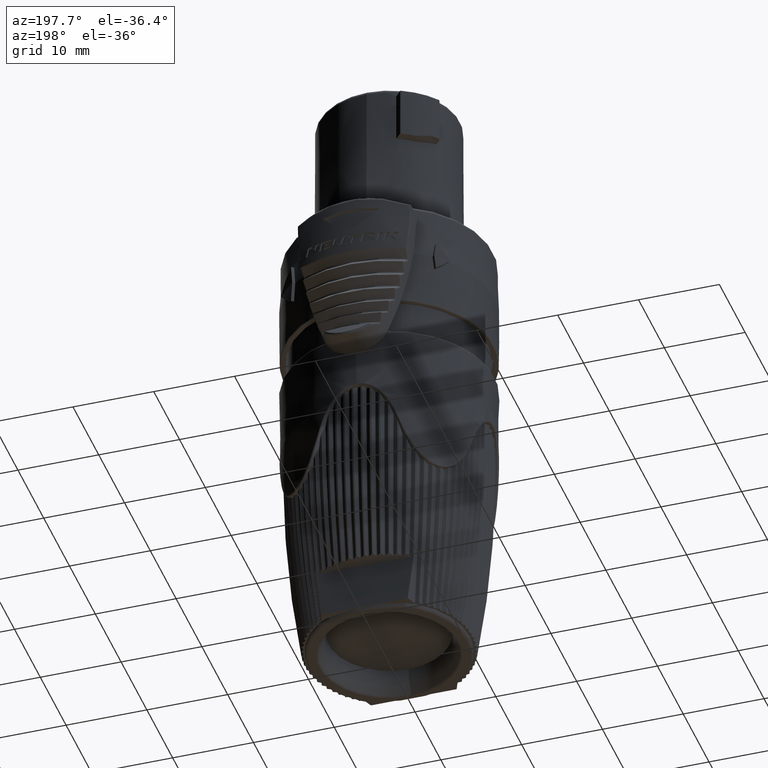
[diagram: clean part render]
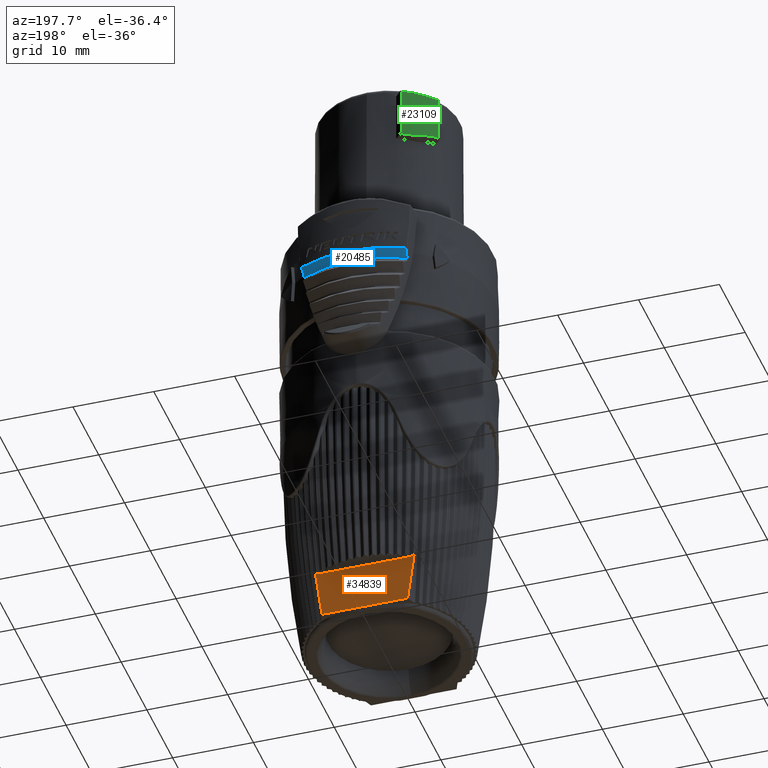
[diagram: same view with three faces highlighted in distinct colors, each labeled with its STEP entity id]
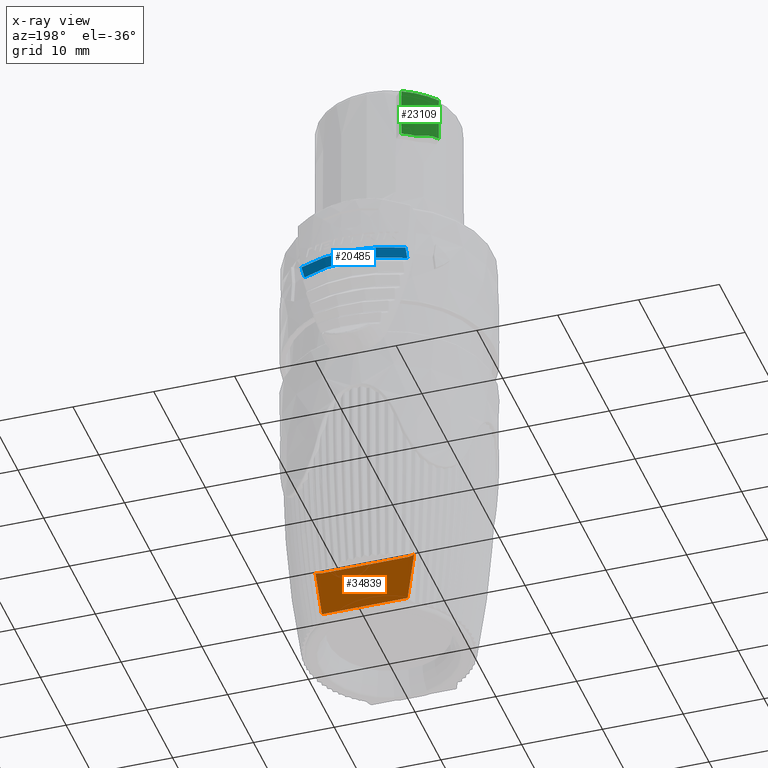
[diagram: x-ray of the same camera — body ghosted, the three highlighted faces saturated]
A machine part, auxiliary view with three faces highlighted in distinct colors.
The next image is the same camera in x-ray (body ghosted, the three faces saturated) — at least one of them is partly hidden behind the body in this view.
Their STEP definitions:

[orange] entity #34839 — the highlighted planar face has unit normal (0, -1, 0).
#8904=DIRECTION('',(-1.E0,0.E0,0.E0));
#8905=VECTOR('',#8904,1.060088867699E1);
#8906=CARTESIAN_POINT('',(5.300444338495E0,9.5E0,-4.25E1));
#8907=LINE('',#8906,#8905);
#10224=CARTESIAN_POINT('',(5.464060213175E0,9.5E0,-3.65E1));
#10225=CARTESIAN_POINT('',(5.478366470474E0,9.5E0,-3.649624897903E1));
#10226=CARTESIAN_POINT('',(5.507201981707E0,9.498439453989E0,
-3.648947753605E1));
#10227=CARTESIAN_POINT('',(5.535265584073E0,9.503121092022E0,
-3.647961945164E1));
#10228=CARTESIAN_POINT('',(5.549623830297E0,9.503121092022E0,
-3.647580898306E1));
#10235=CARTESIAN_POINT('',(5.549623830297E0,9.503121092022E0,
-3.647580898306E1));
#10530=CARTESIAN_POINT('',(-5.549624179735E0,9.503118747782E0,
-3.647580995522E1));
#10537=CARTESIAN_POINT('',(-5.464060213175E0,9.5E0,-3.65E1));
#10538=CARTESIAN_POINT('',(-5.478366470474E0,9.5E0,-3.649624897903E1));
#10539=CARTESIAN_POINT('',(-5.507201806931E0,9.498440626109E0,
-3.648947704975E1));
#10540=CARTESIAN_POINT('',(-5.535265933626E0,9.503118747782E0,
-3.647962042423E1));
#10541=CARTESIAN_POINT('',(-5.549624179735E0,9.503118747782E0,
-3.647580995522E1));
#10560=CARTESIAN_POINT('',(5.549623830297E0,9.503121092022E0,
-3.647580898306E1));
#10561=CARTESIAN_POINT('',(5.593544765742E0,9.503121092022E0,
-3.646416966148E1));
#10562=CARTESIAN_POINT('',(5.682160892628E0,9.498550471150E0,
-3.644281839329E1));
#10563=CARTESIAN_POINT('',(5.814569124323E0,9.500391712944E0,
-3.640581715419E1));
#10564=CARTESIAN_POINT('',(5.947940856207E0,9.499882677076E0,
-3.636916105181E1));
#10565=CARTESIAN_POINT('',(6.037225864147E0,9.500012611526E0,
-3.634397743438E1));
#10566=CARTESIAN_POINT('',(6.082003477146E0,9.500012611526E0,
-3.633128088476E1));
#10573=CARTESIAN_POINT('',(-5.549624179735E0,9.503118747782E0,
-3.647580995522E1));
#10574=CARTESIAN_POINT('',(-5.593545112203E0,9.503118747782E0,
-3.646417062240E1));
#10575=CARTESIAN_POINT('',(-5.682160731771E0,9.498551559547E0,
-3.644281794715E1));
#10576=CARTESIAN_POINT('',(-5.814569167631E0,9.500391419913E0,
-3.640581727430E1));
#10577=CARTESIAN_POINT('',(-5.947940843833E0,9.499882760799E0,
-3.636916101749E1));
#10578=CARTESIAN_POINT('',(-6.037225864147E0,9.500012611526E0,
-3.634397743438E1));
#10579=CARTESIAN_POINT('',(-6.082003477146E0,9.500012611526E0,
-3.633128088476E1));
#10587=DIRECTION('',(-1.E0,-1.267883479204E-14,0.E0));
#10588=VECTOR('',#10587,1.092812042635E1);
#10589=CARTESIAN_POINT('',(5.464060213175E0,9.5E0,-3.65E1));
#10590=LINE('',#10589,#10588);
#10596=DIRECTION('',(9.999997226946E-1,-7.447218667607E-4,8.391636436831E-13));
#10597=VECTOR('',#10596,1.693454527276E-2);
#10598=CARTESIAN_POINT('',(6.082003477146E0,9.500012611526E0,
-3.633128088476E1));
#10599=LINE('',#10598,#10597);
#10600=DIRECTION('',(9.999997226946E-1,7.447218667570E-4,-8.391636436789E-13));
#10601=VECTOR('',#10600,1.693454527284E-2);
#10602=CARTESIAN_POINT('',(-6.098938017723E0,9.5E0,-3.633128088476E1));
#10603=LINE('',#10602,#10601);
#10621=CARTESIAN_POINT('',(5.300444338495E0,9.5E0,-4.25E1));
#10622=CARTESIAN_POINT('',(5.601222351209E0,9.5E0,-4.044823952140E1));
#10623=CARTESIAN_POINT('',(5.867529617049E0,9.5E0,-3.839201828350E1));
#10624=CARTESIAN_POINT('',(6.098938017723E0,9.5E0,-3.633128088476E1));
#13385=CARTESIAN_POINT('',(-5.300444338495E0,9.5E0,-4.25E1));
#13386=CARTESIAN_POINT('',(-5.601222351209E0,9.5E0,-4.044823952140E1));
#13387=CARTESIAN_POINT('',(-5.867529617049E0,9.5E0,-3.839201828350E1));
#13388=CARTESIAN_POINT('',(-6.098938017723E0,9.5E0,-3.633128088476E1));
#15260=CARTESIAN_POINT('',(5.464060213175E0,9.5E0,-3.65E1));
#15261=CARTESIAN_POINT('',(-5.464060213175E0,9.5E0,-3.65E1));
#15262=VERTEX_POINT('',#15260);
#15263=VERTEX_POINT('',#15261);
#15741=VERTEX_POINT('',#10530);
#15874=VERTEX_POINT('',#10235);
#15884=VERTEX_POINT('',#13385);
#15885=VERTEX_POINT('',#13388);
#15886=VERTEX_POINT('',#10621);
#15887=VERTEX_POINT('',#10624);
#16040=CARTESIAN_POINT('',(6.082023176281E0,9.5E0,-3.633128088476E1));
#16042=VERTEX_POINT('',#16040);
#16043=CARTESIAN_POINT('',(-6.082003477146E0,9.500012611526E0,
-3.633128088476E1));
#16044=VERTEX_POINT('',#16043);
#34817=CARTESIAN_POINT('',(1.513243497014E1,9.5E0,-3.65E1));
#34818=DIRECTION('',(0.E0,-1.E0,0.E0));
#34819=DIRECTION('',(0.E0,0.E0,-1.E0));
#34820=AXIS2_PLACEMENT_3D('',#34817,#34818,#34819);
#34821=PLANE('',#34820);
#34822=ORIENTED_EDGE('',*,*,#34810,.T.);
#34824=ORIENTED_EDGE('',*,*,#34823,.F.);
#34826=ORIENTED_EDGE('',*,*,#34825,.F.);
#34827=ORIENTED_EDGE('',*,*,#33265,.F.);
#34829=ORIENTED_EDGE('',*,*,#34828,.T.);
#34831=ORIENTED_EDGE('',*,*,#34830,.F.);
#34832=ORIENTED_EDGE('',*,*,#34799,.F.);
#34833=ORIENTED_EDGE('',*,*,#34697,.F.);
#34835=ORIENTED_EDGE('',*,*,#34834,.T.);
#34836=ORIENTED_EDGE('',*,*,#34784,.T.);
#34837=EDGE_LOOP('',(#34822,#34824,#34826,#34827,#34829,#34831,#34832,#34833,
#34835,#34836));
#34838=FACE_OUTER_BOUND('',#34837,.F.);
#34839=ADVANCED_FACE('',(#34838),#34821,.F.);
#10229=B_SPLINE_CURVE_WITH_KNOTS('',3,(#10224,#10225,#10226,#10227,#10228),
.UNSPECIFIED.,.F.,.F.,(4,1,4),(0.E0,5.E-1,1.E0),.UNSPECIFIED.);
#10542=B_SPLINE_CURVE_WITH_KNOTS('',3,(#10537,#10538,#10539,#10540,#10541),
.UNSPECIFIED.,.F.,.F.,(4,1,4),(0.E0,5.E-1,1.E0),.UNSPECIFIED.);
#10567=B_SPLINE_CURVE_WITH_KNOTS('',3,(#10560,#10561,#10562,#10563,#10564,
#10565,#10566),.UNSPECIFIED.,.F.,.F.,(4,1,1,1,4),(0.E0,2.5E-1,5.E-1,7.5E-1,
1.E0),.UNSPECIFIED.);
#10580=B_SPLINE_CURVE_WITH_KNOTS('',3,(#10573,#10574,#10575,#10576,#10577,
#10578,#10579),.UNSPECIFIED.,.F.,.F.,(4,1,1,1,4),(0.E0,2.5E-1,5.E-1,7.5E-1,
1.E0),.UNSPECIFIED.);
#10625=B_SPLINE_CURVE_WITH_KNOTS('',3,(#10621,#10622,#10623,#10624),
.UNSPECIFIED.,.F.,.F.,(4,4),(0.E0,1.E0),.UNSPECIFIED.);
#13389=B_SPLINE_CURVE_WITH_KNOTS('',3,(#13385,#13386,#13387,#13388),
.UNSPECIFIED.,.F.,.F.,(4,4),(0.E0,1.E0),.UNSPECIFIED.);
#33265=EDGE_CURVE('',#15886,#15884,#8907,.T.);
#34697=EDGE_CURVE('',#15262,#15874,#10229,.T.);
#34784=EDGE_CURVE('',#15263,#15741,#10542,.T.);
#34799=EDGE_CURVE('',#15874,#16042,#10567,.T.);
#34810=EDGE_CURVE('',#15741,#16044,#10580,.T.);
#34823=EDGE_CURVE('',#15885,#16044,#10603,.T.);
#34825=EDGE_CURVE('',#15884,#15885,#13389,.T.);
#34828=EDGE_CURVE('',#15886,#15887,#10625,.T.);
#34830=EDGE_CURVE('',#16042,#15887,#10599,.T.);
#34834=EDGE_CURVE('',#15262,#15263,#10590,.T.);

[blue] entity #20485 — the highlighted conical surface has half-angle 45 deg.
#1148=CARTESIAN_POINT('',(-6.447515669721E0,1.387514114616E1,5.499999995516E0));
#1160=CARTESIAN_POINT('',(6.447515669717E0,1.387514114615E1,5.499999995527E0));
#2200=CARTESIAN_POINT('',(6.447515669717E0,1.387514114615E1,5.499999995527E0));
#2201=CARTESIAN_POINT('',(6.434949668357E0,1.372915585503E1,5.362314603721E0));
#2202=CARTESIAN_POINT('',(6.408114183155E0,1.343142153940E1,5.081491307207E0));
#2203=CARTESIAN_POINT('',(6.377585930818E0,1.312227751946E1,4.789886032015E0));
#2204=CARTESIAN_POINT('',(6.361325314604E0,1.296488300957E1,4.641421328209E0));
#2206=CARTESIAN_POINT('',(0.E0,0.E0,5.5E0));
#2207=DIRECTION('',(0.E0,0.E0,1.E0));
#2208=DIRECTION('',(4.214062527995E-1,9.068719700716E-1,0.E0));
#2209=AXIS2_PLACEMENT_3D('',#2206,#2207,#2208);
#2211=CARTESIAN_POINT('',(-6.361325310711E0,1.296488300165E1,4.641421337049E0));
#2212=CARTESIAN_POINT('',(-6.377591324290E0,1.312232975541E1,4.789935320596E0));
#2213=CARTESIAN_POINT('',(-6.408124077267E0,1.343152627768E1,5.081590093598E0));
#2214=CARTESIAN_POINT('',(-6.434954185828E0,1.372920833642E1,5.362364101296E0));
#2215=CARTESIAN_POINT('',(-6.447515669721E0,1.387514114616E1,5.499999995516E0));
#2217=CARTESIAN_POINT('',(0.E0,0.E0,4.641421356237E0));
#2218=DIRECTION('',(0.E0,0.E0,1.E0));
#2219=DIRECTION('',(4.404916353341E-1,8.977567149293E-1,0.E0));
#2220=AXIS2_PLACEMENT_3D('',#2217,#2218,#2219);
#16340=VERTEX_POINT('',#1160);
#16341=VERTEX_POINT('',#2204);
#16429=VERTEX_POINT('',#1148);
#16433=VERTEX_POINT('',#2211);
#20473=CARTESIAN_POINT('',(0.E0,0.E0,5.070710671404E0));
#20474=DIRECTION('',(0.E0,0.E0,1.E0));
#20475=DIRECTION('',(7.071067811865E-1,7.071067811865E-1,0.E0));
#20476=AXIS2_PLACEMENT_3D('',#20473,#20474,#20475);
#20477=CONICAL_SURFACE('',#20476,1.487071067140E1,4.5E1);
#20478=ORIENTED_EDGE('',*,*,#20464,.F.);
#20479=ORIENTED_EDGE('',*,*,#19017,.T.);
#20480=ORIENTED_EDGE('',*,*,#18987,.F.);
#20482=ORIENTED_EDGE('',*,*,#20481,.F.);
#20483=EDGE_LOOP('',(#20478,#20479,#20480,#20482));
#20484=FACE_OUTER_BOUND('',#20483,.F.);
#20485=ADVANCED_FACE('',(#20484),#20477,.T.);
#2205=B_SPLINE_CURVE_WITH_KNOTS('',3,(#2200,#2201,#2202,#2203,#2204),
.UNSPECIFIED.,.F.,.F.,(4,1,4),(0.E0,5.E-1,1.E0),.UNSPECIFIED.);
#2210=CIRCLE('',#2209,1.53E1);
#2216=B_SPLINE_CURVE_WITH_KNOTS('',3,(#2211,#2212,#2213,#2214,#2215),
.UNSPECIFIED.,.F.,.F.,(4,1,4),(0.E0,5.E-1,1.E0),.UNSPECIFIED.);
#2221=CIRCLE('',#2220,1.444142135624E1);
#18987=EDGE_CURVE('',#16433,#16429,#2216,.T.);
#19017=EDGE_CURVE('',#16340,#16429,#2210,.T.);
#20464=EDGE_CURVE('',#16340,#16341,#2205,.T.);
#20481=EDGE_CURVE('',#16341,#16433,#2221,.T.);

[green] entity #23109 — the highlighted cylindrical surface (partial cylindrical patch) has radius 9.85 mm, axis along (0, 0, -1).
#3675=CARTESIAN_POINT('',(0.E0,0.E0,2.62E1));
#3676=DIRECTION('',(0.E0,0.E0,1.E0));
#3677=DIRECTION('',(-4.368868333300E-1,8.995164783721E-1,0.E0));
#3678=AXIS2_PLACEMENT_3D('',#3675,#3676,#3677);
#3693=CARTESIAN_POINT('',(-7.356860495302E0,6.549740731713E0,2.68E1));
#3694=CARTESIAN_POINT('',(-6.859655793518E0,7.108215605524E0,2.661903228821E1));
#3695=CARTESIAN_POINT('',(-6.309448768245E0,7.599825688351E0,2.641877330833E1));
#3696=CARTESIAN_POINT('',(-5.708374043629E0,8.027263903599E0,2.62E1));
#3711=DIRECTION('',(0.E0,0.E0,1.E0));
#3712=VECTOR('',#3711,6.2E0);
#3713=CARTESIAN_POINT('',(-4.303335308300E0,8.860237311965E0,2.62E1));
#3714=LINE('',#3713,#3712);
#3763=DIRECTION('',(0.E0,0.E0,1.E0));
#3764=VECTOR('',#3763,5.6E0);
#3765=CARTESIAN_POINT('',(-7.978364064175E0,5.776522038344E0,2.68E1));
#3766=LINE('',#3765,#3764);
#3791=CARTESIAN_POINT('',(0.E0,0.E0,3.24E1));
#3792=DIRECTION('',(0.E0,0.E0,1.E0));
#3793=DIRECTION('',(-4.368868333300E-1,8.995164783721E-1,0.E0));
#3794=AXIS2_PLACEMENT_3D('',#3791,#3792,#3793);
#3982=CARTESIAN_POINT('',(0.E0,0.E0,2.68E1));
#3983=DIRECTION('',(0.E0,0.E0,-1.E0));
#3984=DIRECTION('',(-8.099861994086E-1,5.864489379030E-1,0.E0));
#3985=AXIS2_PLACEMENT_3D('',#3982,#3983,#3984);
#16513=CARTESIAN_POINT('',(-4.303335308300E0,8.860237311965E0,2.62E1));
#16514=CARTESIAN_POINT('',(-4.303335308300E0,8.860237311965E0,3.24E1));
#16515=VERTEX_POINT('',#16513);
#16516=VERTEX_POINT('',#16514);
#16549=CARTESIAN_POINT('',(-7.978364064175E0,5.776522038344E0,3.24E1));
#16550=VERTEX_POINT('',#16549);
#16553=CARTESIAN_POINT('',(-5.708374043629E0,8.027263903599E0,2.62E1));
#16555=VERTEX_POINT('',#16553);
#16557=VERTEX_POINT('',#3693);
#16558=CARTESIAN_POINT('',(-7.978364064175E0,5.776522038344E0,2.68E1));
#16559=VERTEX_POINT('',#16558);
#23092=CARTESIAN_POINT('',(0.E0,0.E0,2.62E1));
#23093=DIRECTION('',(0.E0,0.E0,-1.E0));
#23094=DIRECTION('',(-7.660444431190E-1,-6.427876096865E-1,0.E0));
#23095=AXIS2_PLACEMENT_3D('',#23092,#23093,#23094);
#23096=CYLINDRICAL_SURFACE('',#23095,9.85E0);
#23097=ORIENTED_EDGE('',*,*,#23083,.T.);
#23098=ORIENTED_EDGE('',*,*,#23057,.F.);
#23100=ORIENTED_EDGE('',*,*,#23099,.T.);
#23102=ORIENTED_EDGE('',*,*,#23101,.T.);
#23104=ORIENTED_EDGE('',*,*,#23103,.F.);
#23106=ORIENTED_EDGE('',*,*,#23105,.T.);
#23107=EDGE_LOOP('',(#23097,#23098,#23100,#23102,#23104,#23106));
#23108=FACE_OUTER_BOUND('',#23107,.F.);
#23109=ADVANCED_FACE('',(#23108),#23096,.T.);
#3679=CIRCLE('',#3678,9.85E0);
#3697=B_SPLINE_CURVE_WITH_KNOTS('',3,(#3693,#3694,#3695,#3696),.UNSPECIFIED.,
.F.,.F.,(4,4),(0.E0,1.E0),.UNSPECIFIED.);
#3795=CIRCLE('',#3794,9.85E0);
#3986=CIRCLE('',#3985,9.85E0);
#23057=EDGE_CURVE('',#16515,#16555,#3679,.T.);
#23083=EDGE_CURVE('',#16557,#16555,#3697,.T.);
#23099=EDGE_CURVE('',#16515,#16516,#3714,.T.);
#23101=EDGE_CURVE('',#16516,#16550,#3795,.T.);
#23103=EDGE_CURVE('',#16559,#16550,#3766,.T.);
#23105=EDGE_CURVE('',#16559,#16557,#3986,.T.);